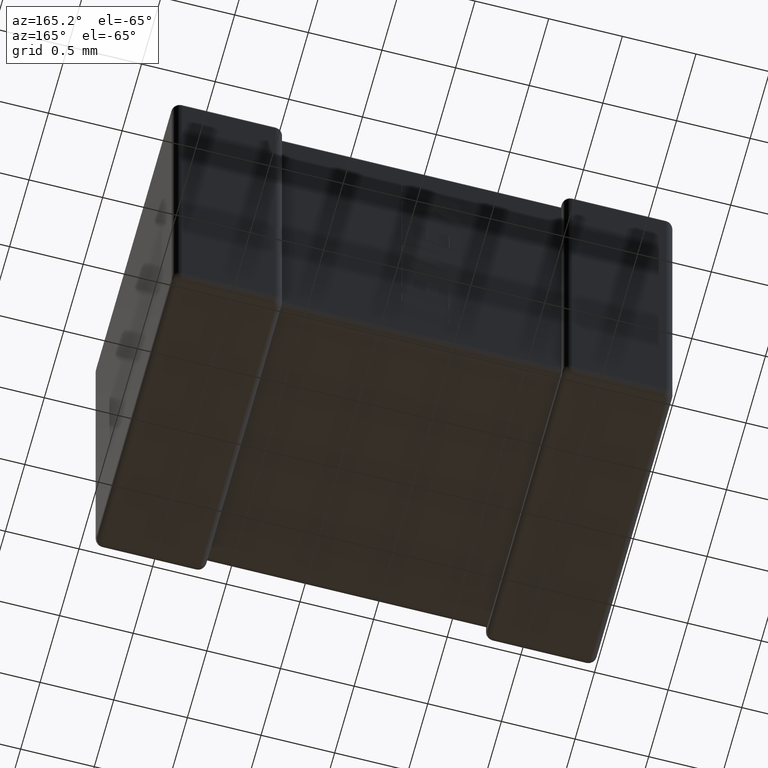
[diagram: clean part render]
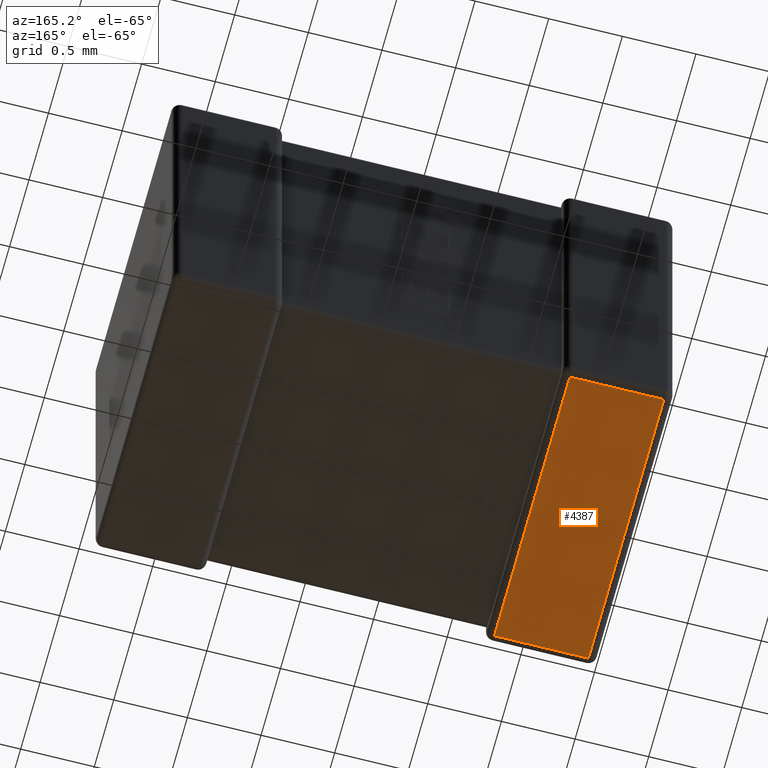
[diagram: same view with one face highlighted and labeled with its STEP entity id]
A machine part, auxiliary view. The second image highlights one B-rep face of the part: STEP entity #4387.
In plain terms, the highlighted planar face has unit normal (0, 0, 1).
Its self-contained STEP definition (entity closure, byte-faithful):
#9 = VECTOR ( 'NONE', #3648, 1000.000000000000000 ) ;
#45 = ORIENTED_EDGE ( 'NONE', *, *, #1227, .T. ) ;
#133 = EDGE_LOOP ( 'NONE', ( #1803, #726, #45, #2885 ) ) ;
#353 = FACE_OUTER_BOUND ( 'NONE', #133, .T. ) ;
#726 = ORIENTED_EDGE ( 'NONE', *, *, #1652, .T. ) ;
#748 = CARTESIAN_POINT ( 'NONE',  ( 0.05615999999999997383, 2.050000000000000266, -2.700000000000000178 ) ) ;
#952 = VERTEX_POINT ( 'NONE', #3784 ) ;
#1227 = EDGE_CURVE ( 'NONE', #2300, #3528, #4006, .T. ) ;
#1322 = VECTOR ( 'NONE', #4401, 1000.000000000000000 ) ;
#1481 = AXIS2_PLACEMENT_3D ( 'NONE', #4254, #2109, #3571 ) ;
#1652 = EDGE_CURVE ( 'NONE', #3017, #2300, #1854, .T. ) ;
#1803 = ORIENTED_EDGE ( 'NONE', *, *, #4128, .T. ) ;
#1854 = LINE ( 'NONE', #2200, #4489 ) ;
#1937 = CARTESIAN_POINT ( 'NONE',  ( 3.400000000000000355, 1.993840000000000279, -2.700000000000000178 ) ) ;
#2065 = VECTOR ( 'NONE', #3387, 1000.000000000000000 ) ;
#2109 = DIRECTION ( 'NONE',  ( 0.000000000000000000, 0.000000000000000000, 1.000000000000000000 ) ) ;
#2200 = CARTESIAN_POINT ( 'NONE',  ( 3.400000000000000355, 0.05616000000000000159, -2.700000000000000178 ) ) ;
#2300 = VERTEX_POINT ( 'NONE', #2622 ) ;
#2474 = LINE ( 'NONE', #1937, #2065 ) ;
#2622 = CARTESIAN_POINT ( 'NONE',  ( 0.05615999999999997383, 0.05616000000000000159, -2.700000000000000178 ) ) ;
#2885 = ORIENTED_EDGE ( 'NONE', *, *, #3404, .T. ) ;
#2927 = CARTESIAN_POINT ( 'NONE',  ( 0.05615999999999997383, 1.993840000000000279, -2.700000000000000178 ) ) ;
#2942 = DIRECTION ( 'NONE',  ( -1.000000000000000000, -0.000000000000000000, 0.000000000000000000 ) ) ;
#2958 = CARTESIAN_POINT ( 'NONE',  ( 0.6938400000000036760, -5.224402690693324092E-15, -2.700000000000000178 ) ) ;
#2990 = LINE ( 'NONE', #2958, #1322 ) ;
#3017 = VERTEX_POINT ( 'NONE', #4379 ) ;
#3387 = DIRECTION ( 'NONE',  ( 1.000000000000000000, -0.000000000000000000, -0.000000000000000000 ) ) ;
#3404 = EDGE_CURVE ( 'NONE', #3528, #952, #2474, .T. ) ;
#3528 = VERTEX_POINT ( 'NONE', #2927 ) ;
#3571 = DIRECTION ( 'NONE',  ( 1.000000000000000000, 0.000000000000000000, -0.000000000000000000 ) ) ;
#3648 = DIRECTION ( 'NONE',  ( 0.000000000000000000, 1.000000000000000000, -0.000000000000000000 ) ) ;
#3784 = CARTESIAN_POINT ( 'NONE',  ( 0.6938399999999997902, 1.993840000000000279, -2.700000000000000178 ) ) ;
#3931 = PLANE ( 'NONE',  #1481 ) ;
#4006 = LINE ( 'NONE', #748, #9 ) ;
#4128 = EDGE_CURVE ( 'NONE', #952, #3017, #2990, .T. ) ;
#4254 = CARTESIAN_POINT ( 'NONE',  ( 3.400000000000000355, 0.000000000000000000, -2.700000000000000178 ) ) ;
#4379 = CARTESIAN_POINT ( 'NONE',  ( 0.6938400000000035650, 0.05616000000000000159, -2.700000000000000178 ) ) ;
#4387 = ADVANCED_FACE ( 'NONE', ( #353 ), #3931, .F. ) ;
#4401 = DIRECTION ( 'NONE',  ( 1.930559423941426429E-15, -1.000000000000000000, 0.000000000000000000 ) ) ;
#4489 = VECTOR ( 'NONE', #2942, 1000.000000000000000 ) ;